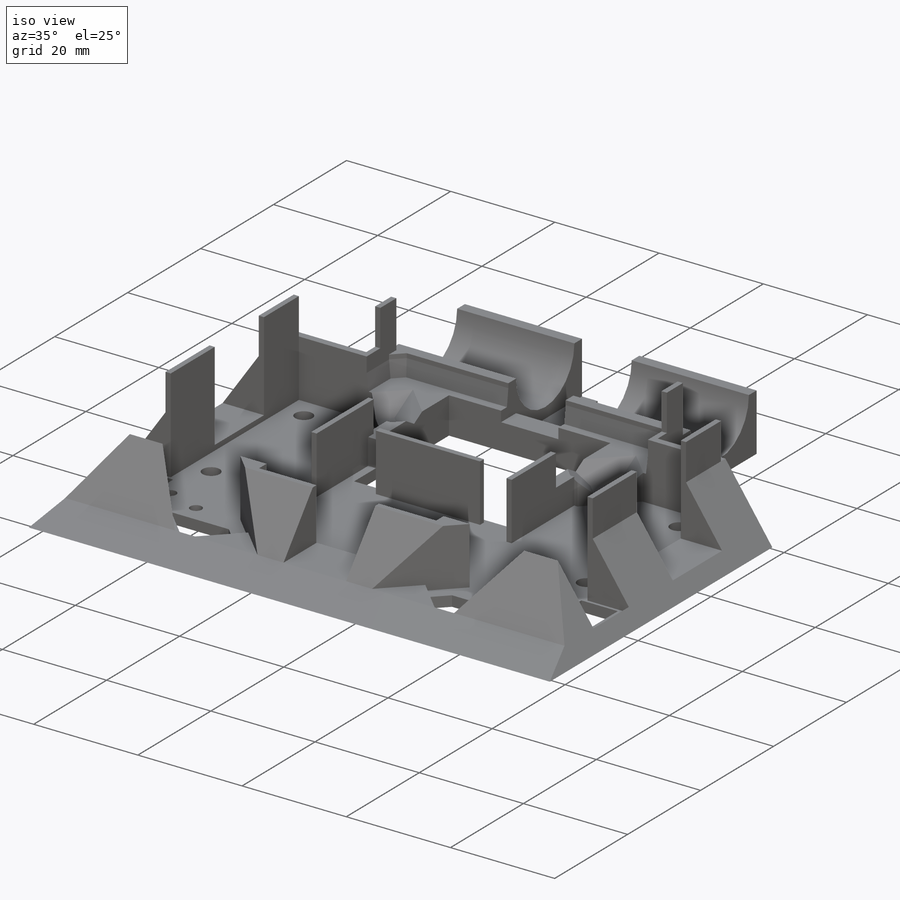
[diagram: iso view]
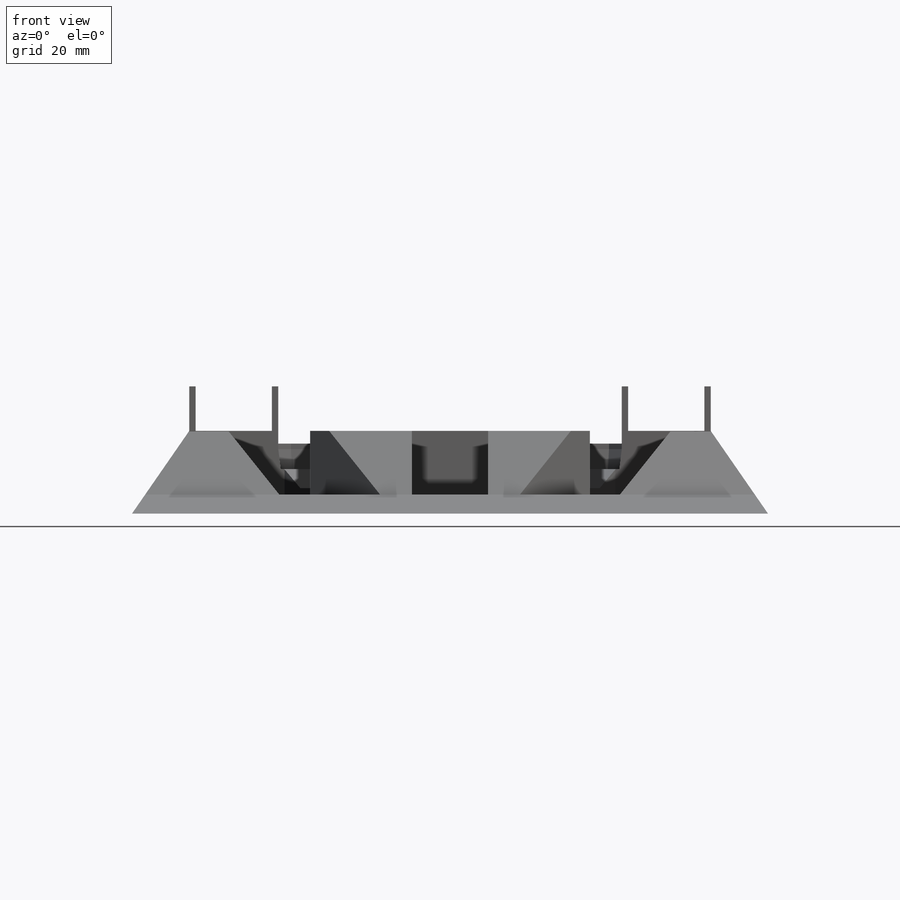
[diagram: front view]
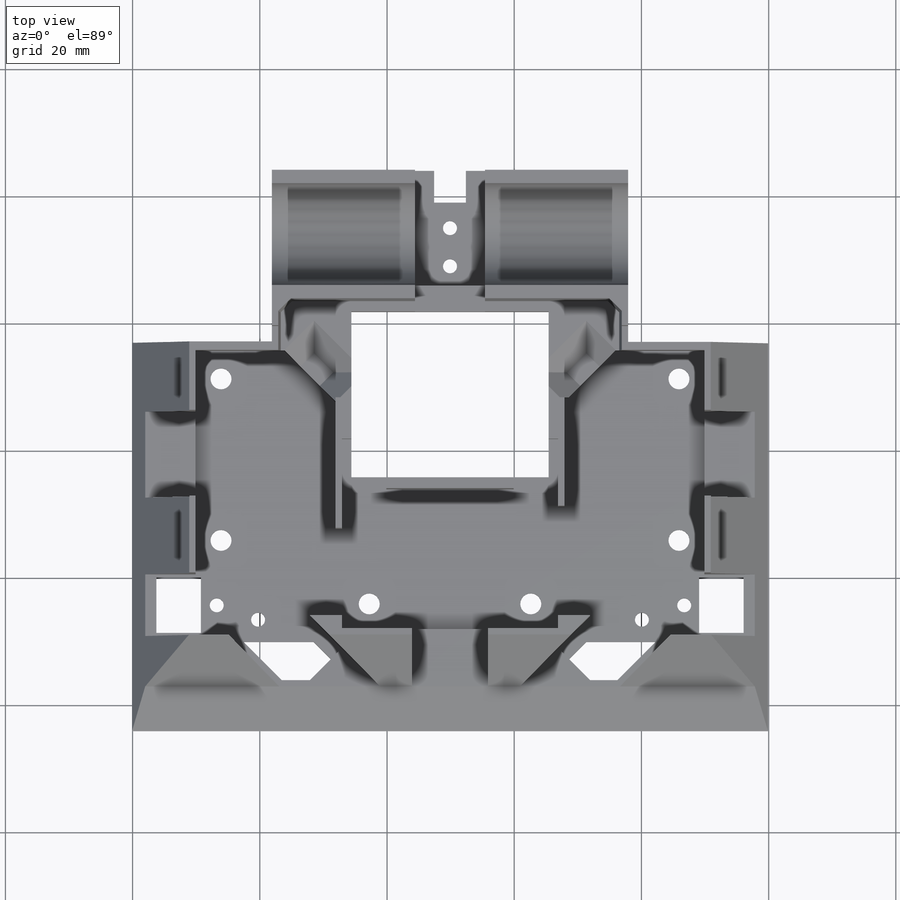
[diagram: top view]
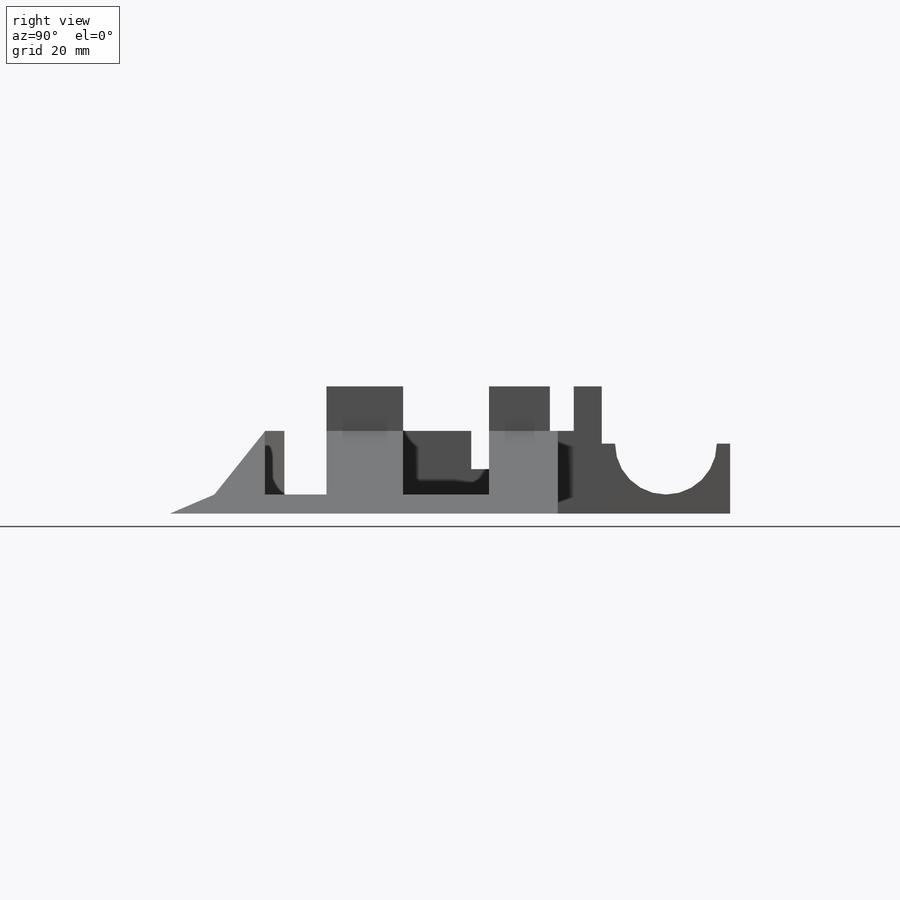
[diagram: right view]
SOLIDWORKS PART (.sldprt)
format: sldprt  version: not decoded by parser v0  size: 2,136,064 bytes
history: native  units: mm
features: sketch x70, cut_extrude x53, extrude x17, chamfer x4, plane x3, material x1 (+10 scaffold rows collapsed)
feature tree (158):
  scaffold x10  (default folders/planes/origin — collapsed)
  material  "1060 Alloy"
  plane  "Ön Düzlem"
  plane  "Üst Düzlem"
  plane  "Sağ Düzlem"
  sketch  "Sketch1"  dims[D1=100.0mm D2=95.0mm]
  extrude  "Boss-Extrude2"  Depth=20mm
  sketch  "Sketch2"  dims[D1=17.0mm D2=12.0mm]
  cut_extrude  "Cut-Extrude2"  Depth=20mm
  sketch  "Sketch3"  dims[D1=17.0mm D2=12.0mm]
  cut_extrude  "Cut-Extrude3"  Depth=22mm
  sketch  "Sketch5"  dims[D1=34.0mm D2=15.0mm D3=12.0mm]
  cut_extrude  "Cut-Extrude4"  Depth=2mm
  sketch  "Sketch7"  dims[D1=12.0mm D2=10.0mm D3=3.0mm D4=44.0mm]
  cut_extrude  "Cut-Extrude5"  Depth=60mm
  sketch  "Sketch8"  dims[D1=12.0mm D2=4.0mm D3=4.0mm D4=4.0mm D5=40.0mm]
  extrude  "Boss-Extrude3"  Depth=60mm
  sketch  "Sketch9"  dims[D1=9.8mm D2=15.2mm]
  cut_extrude  "Cut-Extrude6"  Depth=40mm
  sketch  "Sketch10"  dims[D1=9.7mm D2=15.2mm]
  cut_extrude  "Cut-Extrude7"  Depth=40mm
  sketch  "Sketch11"  dims[D1=12.0mm D2=10.0mm D3=3.0mm D4=11.0mm]
  cut_extrude  "Cut-Extrude8"  Depth=100mm
  sketch  "Sketch12"
  cut_extrude  "Cut-Extrude9"  Depth=100mm
  sketch  "Sketch13"  dims[c1.D1=7.0mm c1.D2=3.0mm c1.D3=15.0mm c1.D4=15.0mm c2.D3=13.0mm c2.D5=10.0mm]
  cut_extrude  "Cut-Extrude14"  Depth=100mm
  sketch  "Sketch15"
  cut_extrude  "Cut-Extrude15"  Depth=100mm
  sketch  "Sketch16"  dims[D1=22.0mm D2=1.0mm D3=34.0mm D4=33.0mm]
  cut_extrude  "Cut-Extrude16"  Depth=12mm
  sketch  "Sketch17"  dims[D1=34.0mm D2=~12.182986mm]
  extrude  "Boss-Extrude4"  Depth=12mm
  sketch  "Sketch18"  dims[D1=34.0mm D2=22.0mm D3=1.0mm D4=2.0mm D5=22.0mm D6=1.0mm]
  cut_extrude  "Cut-Extrude19"  Depth=12mm
  sketch  "Sketch19"  dims[D1=0.0mm]
  extrude  "Boss-Extrude5"  Depth=12mm
  sketch  "Sketch20"  dims[D1=1.0mm D2=1.0mm D3=3.0mm D4=1.0mm]
  cut_extrude  "Cut-Extrude20"  Depth=12mm
  sketch  "Sketch21"  dims[D1=17.0mm D2=13.0mm]
  cut_extrude  "Cut-Extrude21"  Depth=100mm
  sketch  "Sketch22"  dims[D1=1.0mm D2=1.0mm D3=2.0mm]
  cut_extrude  "Cut-Extrude22"  Depth=12mm
  sketch  "Sketch23"  dims[D1=9.0mm D2=9.0mm]
  cut_extrude  "Cut-Extrude23"  Depth=100mm
  sketch  "Sketch24"  dims[c1.D1=11.0mm c1.D2=11.5mm c1.D3=1.0mm c1.D4=4.0mm c2.D3=2.0mm c2.D5=4.0mm]
  cut_extrude  "Cut-Extrude24"  Depth=12mm
  sketch  "Sketch25"  dims[D1=7.0mm D2=7.0mm]
  cut_extrude  "Cut-Extrude25"  Depth=12mm
  sketch  "Sketch26"  dims[D1=0.0mm]
  cut_extrude  "Cut-Extrude26"  Depth=12mm
  sketch  "Sketch27"  dims[D1=1.0mm D2=20.0mm D3=1.0mm]
  cut_extrude  "Cut-Extrude27"  Depth=12mm
  sketch  "Sketch28"  dims[D1=9.7mm D2=15.2mm D3=0.0mm D4=~0.09625mm]
  cut_extrude  "Cut-Extrude28"  Depth=10mm
  sketch  "Sketch30"
  cut_extrude  "Cut-Extrude29"  Depth=12mm
  sketch  "Sketch32"  dims[D1=2.0mm]
  cut_extrude  "Cut-Extrude30"  Depth=100mm
  sketch  "Sketch33"  dims[c1.D1=~2.244856mm c1.D3=~2.346754mm c1.D2=~2.452999mm c1.D5=3.3mm c2.D1=4.0mm c2.D2=3.2mm c2.D3=25.4mm c2.D4=8.2mm c2.D5=~6.368937mm c3.D2=4.0mm]
  cut_extrude  "Cut-Extrude31"  Depth=10mm
  sketch  "Sketch34"  dims[D1=1.5mm D2=1.5mm]
  cut_extrude  "Cut-Extrude33"  [1 undecoded]
  sketch  "Sketch35"  dims[D1=8.1mm D2=6.1mm]
  cut_extrude  "Cut-Extrude34"  Depth=100mm
  sketch  "Sketch37"  dims[D1=0.0mm]
  cut_extrude  "Cut-Extrude35"  Depth=2mm
  sketch  "Sketch39"  dims[c1.D1=~1.913195mm c1.D3=~1.860175mm c2.D1=4.0mm c2.D2=8.2mm c2.D3=8.2mm c2.D4=25.4mm c3.D2=6.7mm]
  cut_extrude  "Cut-Extrude36"  Depth=5mm
  sketch  "Sketch41"  dims[D1=7.0mm]
  cut_extrude  "Cut-Extrude37"  [1 undecoded]
  sketch  "Sketch42"
  cut_extrude  "Cut-Extrude38"  Depth=25mm
  sketch  "Sketch43"
  cut_extrude  "Cut-Extrude39"  Depth=25mm
  sketch  "Sketch44"  dims[D1=0.5mm D2=0.5mm D3=0.75mm D4=10.0mm D5=0.75mm D6=10.0mm D7=~94.346154mm]
  cut_extrude  "Cut-Extrude40"  Depth=25mm
  sketch  "Sketch45"  dims[D1=1.0mm D2=1.0mm D3=1.0mm D4=2.0mm D5=1.0mm D6=1.0mm D7=1.0mm D8=1.0mm D9=1.0mm D10=~30.828427mm]
  cut_extrude  "Cut-Extrude41"  Depth=25mm
  sketch  "Sketch46"  dims[D1=15.0mm D2=11.0mm D3=11.0mm D4=2.0mm D5=11.0mm D6=2.0mm]
  cut_extrude  "Cut-Extrude42"  Depth=25mm
  sketch  "Sketch47"
  extrude  "Boss-Extrude8"  Depth=7mm
  sketch  "Sketch49"  dims[4=3.75mm]
  cut_extrude  "Cut-Extrude46"  Depth=7mm
  sketch  "Sketch50"  dims[D1=0.0mm D2=21.6215mm D3=~17.852563mm D4=3.7785mm D5=0.0mm D6=4.0mm D7=4.0mm D8=6.0mm D9=6.0mm D10=~16.839022mm]
  cut_extrude  "Cut-Extrude47"  Depth=10mm
  sketch  "Sketch51"  dims[D1=27.0mm D2=23.0mm D3=4.0mm D4=3.0mm D5=~3.160978mm]
  cut_extrude  "Cut-Extrude48"  Depth=10mm
  sketch  "Sketch52"
  extrude  "Boss-Extrude9"  [1 undecoded]
  sketch  "Sketch53"  dims[D1=2.0mm D2=2.0mm]
  cut_extrude  "Cut-Extrude49"  Depth=100mm
  sketch  "Sketch56"  dims[D1=10.5mm]
  cut_extrude  "Cut-Extrude50"  Depth=10mm
  sketch  "Sketch58"  dims[D1=5.0mm D2=3.0mm D3=5.0mm]
  cut_extrude  "Cut-Extrude51"  Depth=10mm
  sketch  "Sketch64"  dims[D1=1.0mm D2=1.0mm D3=2.0mm D4=2.0mm]
  extrude  "Boss-Extrude10"  [1 undecoded]
  sketch  "Sketch65"  dims[c1.D1=~1.475971mm c1.D5=~1.180351mm c1.D7=~0.957975mm c1.D8=~1.626396mm c1.D10=~1.005353mm c2.D1=2.5mm c2.D2=6.0mm c2.D3=4.0mm c2.D4=2.5mm c2.D5=11.5mm c2.D6=4.35mm c2.D7=11.5mm c2.D8=3.5mm c2.D9=7.0mm c2.D10=7.0mm]
  cut_extrude  "Cut-Extrude52"  Depth=100mm
  sketch  "Sketch66"  dims[D1=2.0mm D2=2.0mm]
  extrude  "Boss-Extrude11"  [1 undecoded]
  sketch  "Sketch67"  dims[c1.D1=~0.901456mm c1.D3=~0.856692mm c2.D1=4.35mm c2.D2=9.5mm c2.D3=9.35mm]
  cut_extrude  "Cut-Extrude53"  Depth=10mm
  sketch  "Sketch68"
  extrude  "Boss-Extrude12"  Depth=1mm
  sketch  "Sketch69"
  cut_extrude  "Cut-Extrude54"  Depth=1mm
  sketch  "Sketch70"
  cut_extrude  "Cut-Extrude55"  Depth=100mm
  sketch  "Sketch71"  dims[D1=2.0mm D2=2.0mm D3=2.0mm D4=2.0mm]
  cut_extrude  "Cut-Extrude56"  Depth=10mm
  sketch  "Sketch72"  dims[D1=2.0mm D2=2.0mm]
  extrude  "Boss-Extrude13"  [1 undecoded]
  chamfer  "Chamfer1"  Distance=1mm Angle=83deg
  chamfer  "Chamfer2"  Distance=1mm Angle=83deg
  chamfer  "Chamfer3"  Distance=1mm Angle=83deg
  sketch  "Sketch73"
  cut_extrude  "Cut-Extrude57"  Depth=1mm
  sketch  "Sketch74"
  extrude  "Boss-Extrude14"  Depth=5mm
  sketch  "Sketch75"  dims[D1=2.0mm]
  extrude  "Boss-Extrude15"  [1 undecoded]
  sketch  "Sketch76"  dims[D1=3.5mm D2=3.5mm D3=3.0mm D4=3.0mm]
  cut_extrude  "Cut-Extrude58"  Depth=3mm
  chamfer  "Chamfer4"  Distance=3mm Angle=50deg
  sketch  "Sketch79"
  cut_extrude  "Cut-Extrude59"  [1 undecoded]
  sketch  "Sketch80"  dims[D1=5.0mm]
  cut_extrude  "Cut-Extrude60"  [1 undecoded]
  sketch  "Sketch81"
  cut_extrude  "Cut-Extrude61"  [1 undecoded]
  sketch  "Sketch83"
  extrude  "Boss-Extrude17"  Depth=1mm
  sketch  "Sketch84"  dims[D1=0.0mm]
  extrude  "Boss-Extrude18"  [1 undecoded]
  sketch  "Sketch85"
  extrude  "Boss-Extrude19"  [1 undecoded]
  sketch  "Sketch86"
  extrude  "Boss-Extrude20"  Depth=3mm
  sketch  "Sketch87"  dims[D1=3.5mm]
  cut_extrude  "Cut-Extrude62"  Depth=3mm
  sketch  "Sketch88"  dims[D1=0.0mm]
  cut_extrude  "Cut-Extrude63"  [1 undecoded]
  sketch  "Sketch91"
  cut_extrude  "Cut-Extrude65"  Depth=6mm
  sketch  "Sketch92"  dims[D1=12.0mm D2=12.0mm]
  extrude  "Boss-Extrude23"  [1 undecoded]
decode coverage: 112 of 144 modeling features carry decoded parameters
note: ~ marks probable driven/reference dimensions
note: 14 parameter values undecoded
summary: no parameter record found for 14 features
note: suppression state not decoded; provenance and decode notes live in map.json
